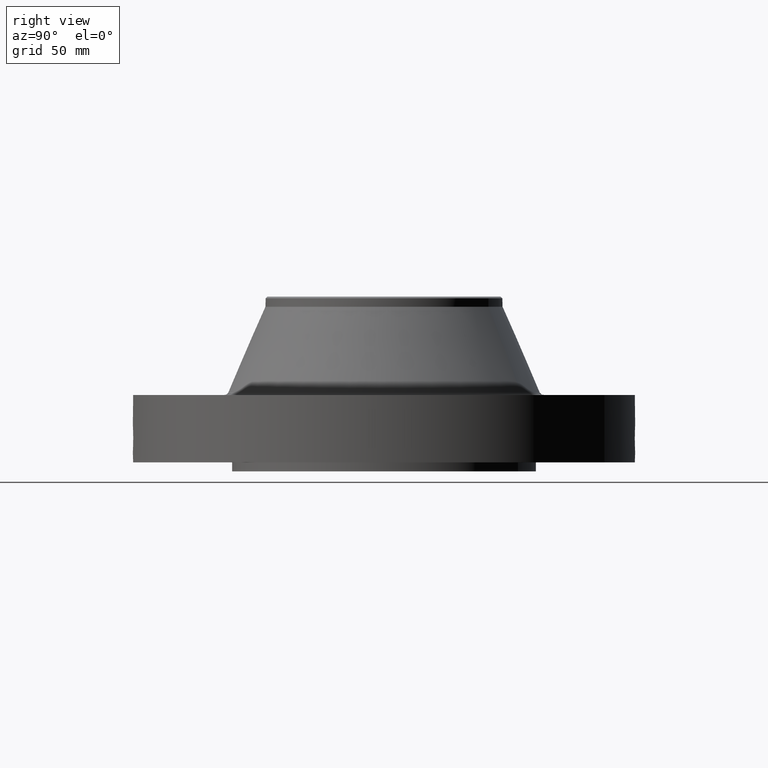
[diagram: clean part render]
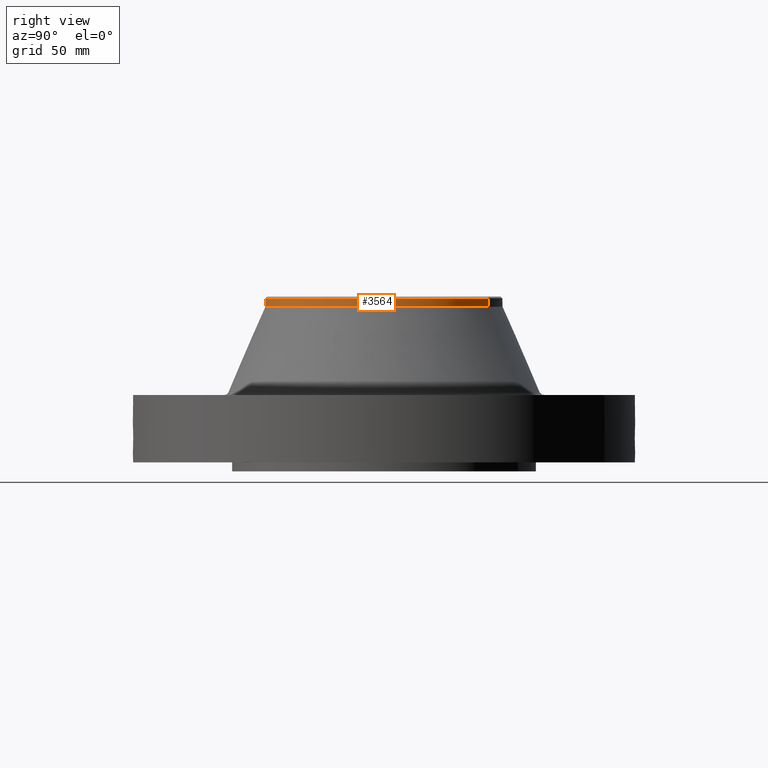
[diagram: same view with one face highlighted and labeled with its STEP entity id]
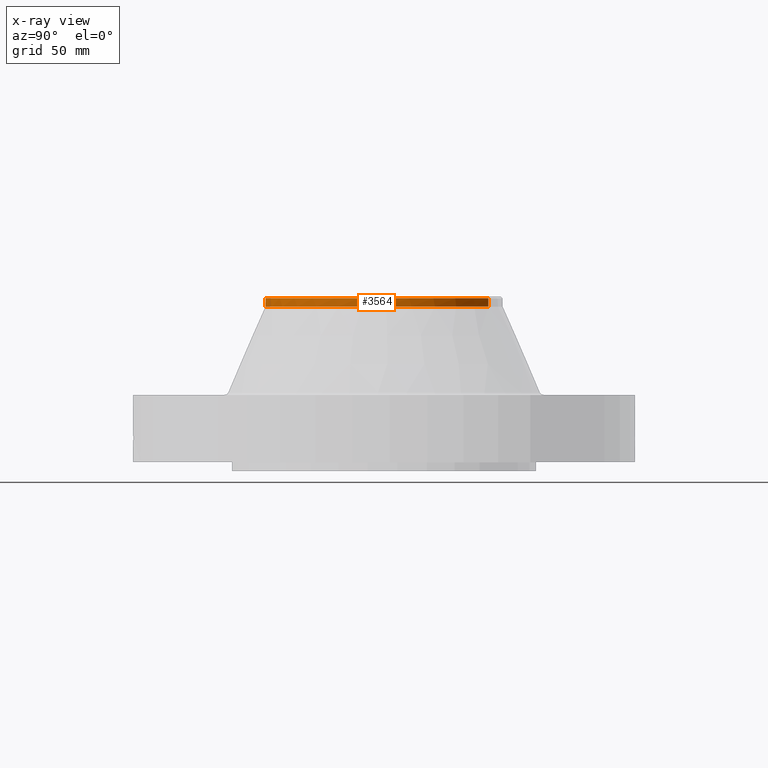
[diagram: x-ray of the same camera — body ghosted, the highlighted face saturated]
A machine part, right view. The second image highlights one B-rep face of the part: STEP entity #3564.
The next image is the same camera in x-ray: the body ghosted, the highlighted face saturated — about 0% of this face is hidden behind the body in this view.
In plain terms, the highlighted cylindrical surface (partial cylindrical patch) has radius 84.201 mm, axis along (0, 0, -1).
Its self-contained STEP definition (entity closure, byte-faithful):
#2753=AXIS2_PLACEMENT_3D('Circle Axis2P3D',#2751,#2752,$) ;
#3529=AXIS2_PLACEMENT_3D('Cylinder Axis2P3D',#3526,#3527,#3528) ;
#3547=AXIS2_PLACEMENT_3D('Circle Axis2P3D',#3545,#3546,$) ;
#3554=AXIS2_PLACEMENT_3D('Circle Axis2P3D',#3552,#3553,$) ;
#2748=CARTESIAN_POINT('Vertex',(1.58929566048,2.90918619268,4.58945884159)) ;
#2751=CARTESIAN_POINT('Axis2P3D Location',(0.,0.,4.58945884159)) ;
#2755=CARTESIAN_POINT('Vertex',(-1.58929566048,-2.90918619268,4.58945884159)) ;
#3526=CARTESIAN_POINT('Axis2P3D Location',(0.,0.,2.43500000001)) ;
#3531=CARTESIAN_POINT('Line Origine',(-1.58929566048,-2.90918619268,4.70756907781)) ;
#3535=CARTESIAN_POINT('Vertex',(-1.58929566048,-2.90918619268,4.82567931403)) ;
#3538=CARTESIAN_POINT('Line Origine',(1.58929566048,2.90918619268,4.70756907781)) ;
#3542=CARTESIAN_POINT('Vertex',(1.58929566048,2.90918619268,4.82567931403)) ;
#3545=CARTESIAN_POINT('Axis2P3D Location',(0.,0.,4.82567931403)) ;
#3549=CARTESIAN_POINT('Vertex',(1.58929566048,-2.90918619268,4.82567931403)) ;
#3552=CARTESIAN_POINT('Axis2P3D Location',(0.,0.,4.82567931403)) ;
#2752=DIRECTION('Axis2P3D Direction',(0.,0.,-0.0393700787402)) ;
#3527=DIRECTION('Axis2P3D Direction',(0.,0.,-0.0393700787402)) ;
#3528=DIRECTION('Axis2P3D XDirection',(-0.0188750212049,-0.0345504945626,0.)) ;
#3532=DIRECTION('Vector Direction',(0.,0.,-0.0393700787402)) ;
#3539=DIRECTION('Vector Direction',(0.,0.,-0.0393700787402)) ;
#3546=DIRECTION('Axis2P3D Direction',(0.,0.,-0.0393700787402)) ;
#3553=DIRECTION('Axis2P3D Direction',(0.,0.,-0.0393700787402)) ;
#3533=VECTOR('Line Direction',#3532,0.0393700787402) ;
#3540=VECTOR('Line Direction',#3539,0.0393700787402) ;
#3558=ORIENTED_EDGE('',*,*,#3537,.F.) ;
#3559=ORIENTED_EDGE('',*,*,#2757,.F.) ;
#3560=ORIENTED_EDGE('',*,*,#3544,.T.) ;
#3561=ORIENTED_EDGE('',*,*,#3551,.F.) ;
#3562=ORIENTED_EDGE('',*,*,#3556,.T.) ;
#3564=ADVANCED_FACE('PartBody',(#3563),#3530,.T.) ;
#2754=CIRCLE('generated circle',#2753,3.31500000001) ;
#3548=CIRCLE('generated circle',#3547,3.31500000001) ;
#3555=CIRCLE('generated circle',#3554,3.31500000001) ;
#3530=CYLINDRICAL_SURFACE('generated cylinder',#3529,3.31500000001) ;
#2757=EDGE_CURVE('',#2749,#2756,#2754,.T.) ;
#3537=EDGE_CURVE('',#2756,#3536,#3534,.F.) ;
#3544=EDGE_CURVE('',#2749,#3543,#3541,.F.) ;
#3551=EDGE_CURVE('',#3550,#3543,#3548,.F.) ;
#3556=EDGE_CURVE('',#3550,#3536,#3555,.T.) ;
#3557=EDGE_LOOP('',(#3558,#3559,#3560,#3561,#3562)) ;
#3563=FACE_OUTER_BOUND('',#3557,.T.) ;
#3534=LINE('Line',#3531,#3533) ;
#3541=LINE('Line',#3538,#3540) ;
#2749=VERTEX_POINT('',#2748) ;
#2756=VERTEX_POINT('',#2755) ;
#3536=VERTEX_POINT('',#3535) ;
#3543=VERTEX_POINT('',#3542) ;
#3550=VERTEX_POINT('',#3549) ;